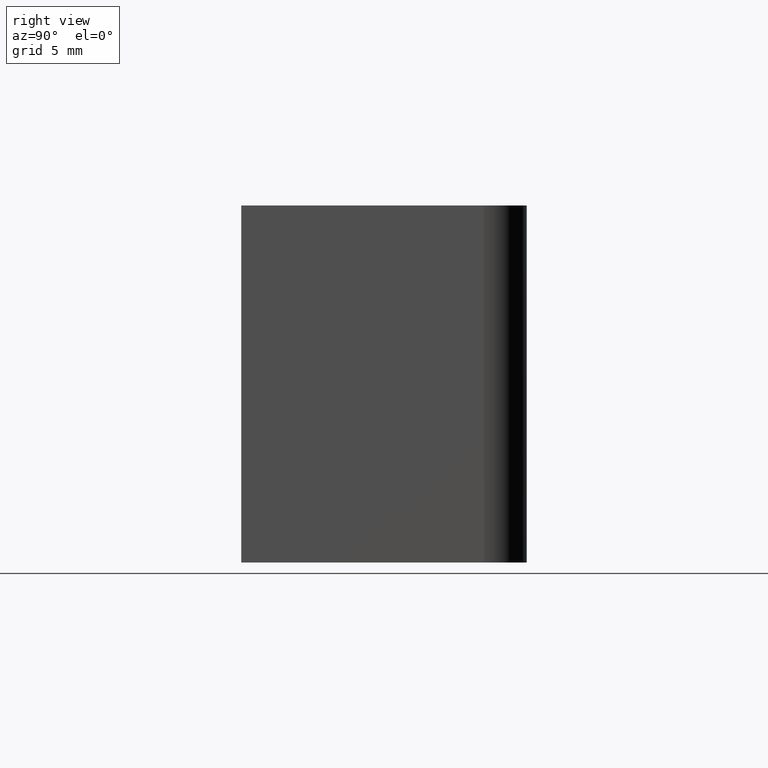
[diagram: clean part render]
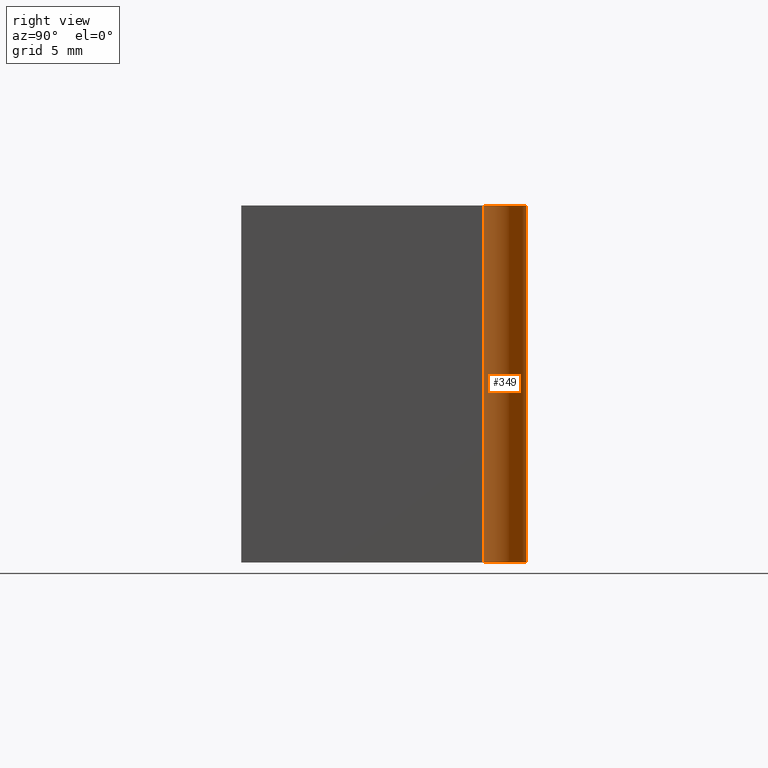
[diagram: same view with one face highlighted and labeled with its STEP entity id]
A machine part, right view. The second image highlights one B-rep face of the part: STEP entity #349.
In plain terms, the highlighted cylindrical surface (partial cylindrical patch) has radius 3 mm, axis along (0, 0, 1).
Its self-contained STEP definition (entity closure, byte-faithful):
#17=CYLINDRICAL_SURFACE('',#395,3.);
#32=FACE_OUTER_BOUND('',#50,.T.);
#50=EDGE_LOOP('',(#292,#293,#294,#295));
#56=CIRCLE('',#379,3.);
#59=CIRCLE('',#396,3.);
#97=LINE('',#579,#139);
#98=LINE('',#583,#140);
#139=VECTOR('',#477,10.);
#140=VECTOR('',#482,10.);
#145=VERTEX_POINT('',#495);
#159=VERTEX_POINT('',#523);
#173=VERTEX_POINT('',#577);
#174=VERTEX_POINT('',#581);
#191=EDGE_CURVE('',#145,#159,#56,.T.);
#218=EDGE_CURVE('',#173,#159,#97,.T.);
#219=EDGE_CURVE('',#173,#174,#59,.T.);
#220=EDGE_CURVE('',#174,#145,#98,.T.);
#292=ORIENTED_EDGE('',*,*,#219,.T.);
#293=ORIENTED_EDGE('',*,*,#220,.T.);
#294=ORIENTED_EDGE('',*,*,#191,.T.);
#295=ORIENTED_EDGE('',*,*,#218,.F.);
#349=ADVANCED_FACE('',(#32),#17,.T.);
#379=AXIS2_PLACEMENT_3D('',#525,#421,#422);
#395=AXIS2_PLACEMENT_3D('',#580,#478,#479);
#396=AXIS2_PLACEMENT_3D('',#582,#480,#481);
#421=DIRECTION('center_axis',(0.,0.,1.));
#422=DIRECTION('ref_axis',(-1.,0.,0.));
#477=DIRECTION('',(0.,0.,-1.));
#478=DIRECTION('center_axis',(0.,0.,1.));
#479=DIRECTION('ref_axis',(-1.,0.,0.));
#480=DIRECTION('center_axis',(0.,0.,-1.));
#481=DIRECTION('ref_axis',(-1.,0.,0.));
#482=DIRECTION('',(0.,0.,-1.));
#495=CARTESIAN_POINT('',(20.,17.,-12.5));
#523=CARTESIAN_POINT('',(15.0745368754787,19.3005633562475,-12.5));
#525=CARTESIAN_POINT('Origin',(17.,17.,-12.5));
#577=CARTESIAN_POINT('',(15.0745368754787,19.3005633562475,12.5));
#579=CARTESIAN_POINT('',(15.0745368754787,19.3005633562475,0.));
#580=CARTESIAN_POINT('Origin',(17.,17.,0.));
#581=CARTESIAN_POINT('',(20.,17.,12.5));
#582=CARTESIAN_POINT('Origin',(17.,17.,12.5));
#583=CARTESIAN_POINT('',(20.,17.,0.));